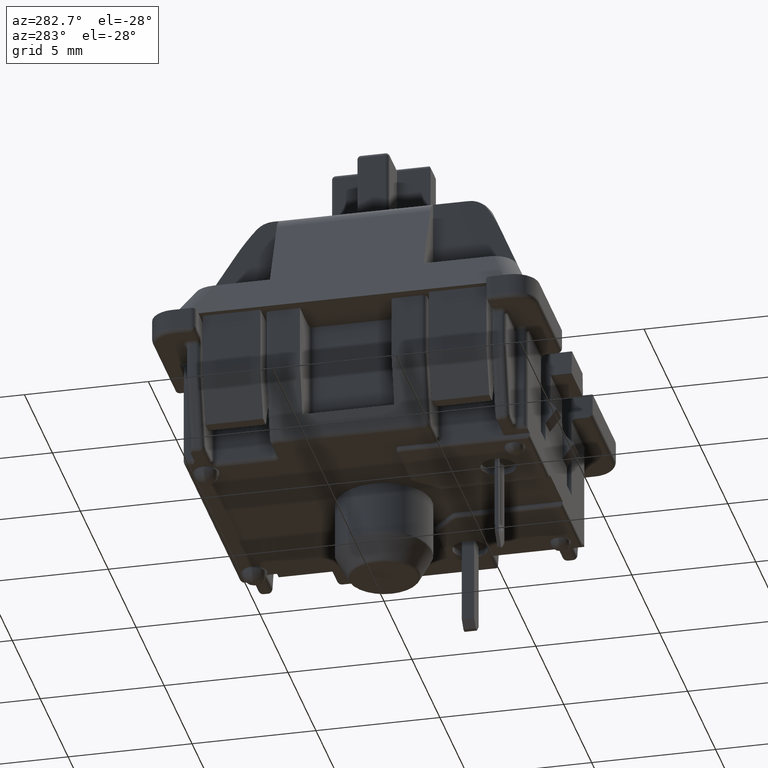
[diagram: clean part render]
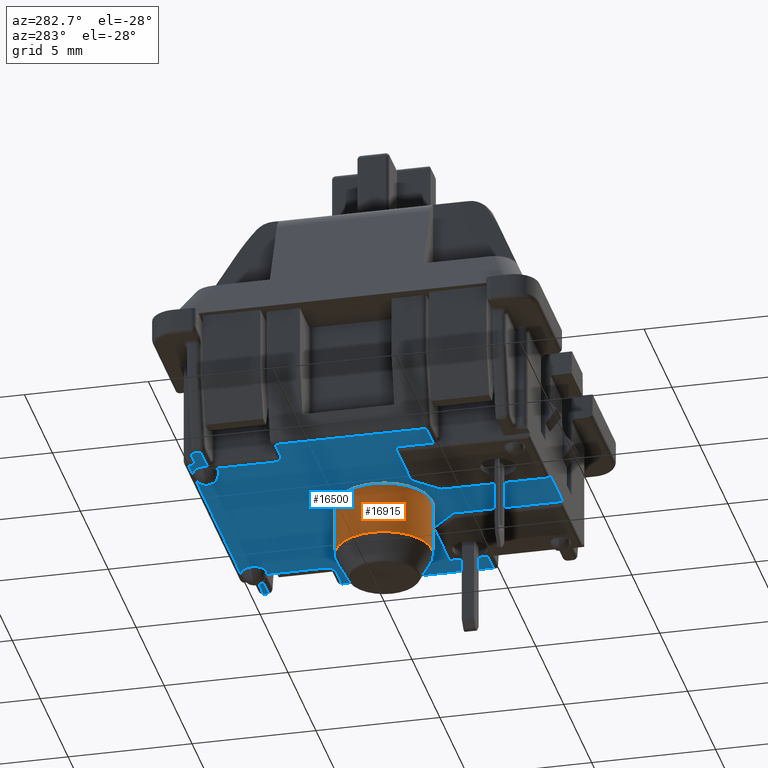
[diagram: same view with the hole feature highlighted: cylindrical wall and planar end face, labeled with their STEP entity ids]
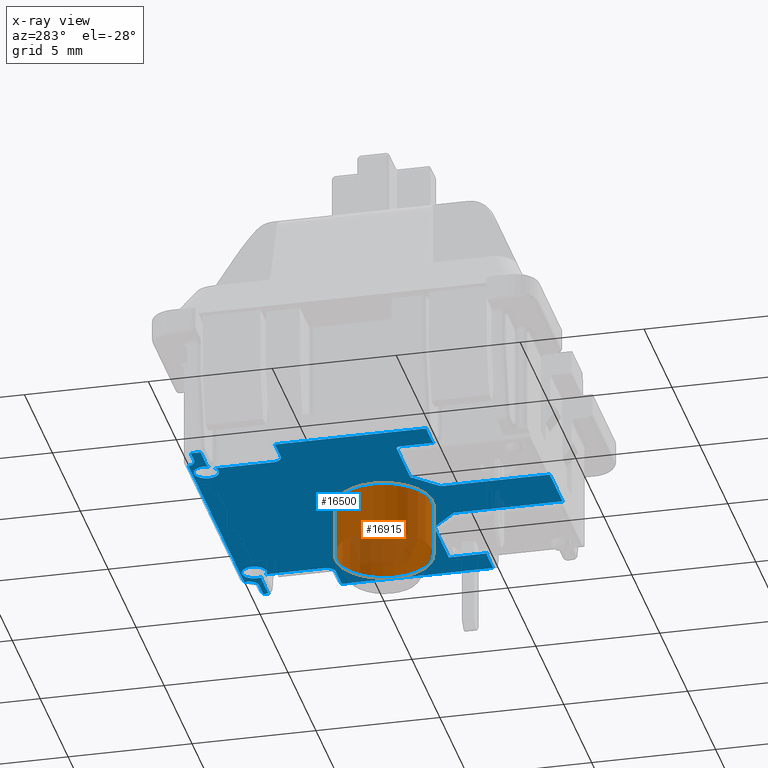
[diagram: x-ray of the same camera — body ghosted, the hole faces saturated]
A machine part, auxiliary view. The highlighted faces form one hole feature of diameter 3.9 mm: the cylindrical wall (entity #16915, orange) and its adjacent planar end face (entity #16500, blue) — they share a circular edge in the B-rep.
The next image is the same camera in x-ray (body ghosted, the hole faces saturated) — the bore reads through the body.
Wall:
#16489=CARTESIAN_POINT('',(0.076771653543307,-1.880363E-017,-0.216535433070866));
#16490=VERTEX_POINT('',#16489);
#16491=CARTESIAN_POINT('',(0.0,0.0,-0.216535433070866));
#16492=DIRECTION('',(0.0,0.0,1.0));
#16493=DIRECTION('',(1.0,0.0,0.0));
#16494=AXIS2_PLACEMENT_3D('',#16491,#16492,#16493);
#16495=CIRCLE('',#16494,0.076771653543307);
#16496=EDGE_CURVE('',#16490,#16490,#16495,.T.);
#16889=CARTESIAN_POINT('',(0.076771653543308,0.0,-0.301632735636528));
#16890=VERTEX_POINT('',#16889);
#16891=CARTESIAN_POINT('',(0.0,0.0,-0.301632735636528));
#16892=DIRECTION('',(0.0,0.0,-1.0));
#16893=DIRECTION('',(-1.0,0.0,0.0));
#16894=AXIS2_PLACEMENT_3D('',#16891,#16892,#16893);
#16895=CIRCLE('',#16894,0.076771653543307);
#16896=EDGE_CURVE('',#16890,#16890,#16895,.T.);
#16904=CARTESIAN_POINT('',(0.0,0.0,-0.305887600764811));
#16905=DIRECTION('',(0.0,0.0,1.0));
#16906=DIRECTION('',(1.0,0.0,0.0));
#16907=AXIS2_PLACEMENT_3D('',#16904,#16905,#16906);
#16908=CYLINDRICAL_SURFACE('',#16907,0.076771653543307);
#16909=ORIENTED_EDGE('',*,*,#16496,.F.);
#16910=EDGE_LOOP('',(#16909));
#16911=FACE_OUTER_BOUND('',#16910,.T.);
#16912=ORIENTED_EDGE('',*,*,#16896,.F.);
#16913=EDGE_LOOP('',(#16912));
#16914=FACE_BOUND('',#16913,.T.);
#16915=ADVANCED_FACE('',(#16911,#16914),#16908,.T.);
End face:
#9914=CARTESIAN_POINT('',(-0.196850393700787,0.265748031496063,-0.216535433070866));
#9915=VERTEX_POINT('',#9914);
#9939=CARTESIAN_POINT('',(-0.196850393700787,0.261811023622047,-0.216535433070866));
#9940=VERTEX_POINT('',#9939);
#9941=CARTESIAN_POINT('',(-0.196850393700787,0.265748031496063,-0.216535433070866));
#9942=DIRECTION('',(0.0,-1.0,0.0));
#9943=VECTOR('',#9942,0.003937007874016);
#9944=LINE('',#9941,#9943);
#9945=EDGE_CURVE('',#9915,#9940,#9944,.T.);
#9979=CARTESIAN_POINT('',(0.196850393700787,0.265748031496063,-0.216535433070866));
#9980=VERTEX_POINT('',#9979);
#9988=CARTESIAN_POINT('',(0.196850393700787,0.265748031496063,-0.216535433070866));
#9989=DIRECTION('',(-1.0,0.0,0.0));
#9990=VECTOR('',#9989,0.393700787401574);
#9991=LINE('',#9988,#9990);
#9992=EDGE_CURVE('',#9980,#9915,#9991,.T.);
#11454=CARTESIAN_POINT('',(-0.045275590551181,-0.273622047244095,-0.216535433070866));
#11455=VERTEX_POINT('',#11454);
#11462=CARTESIAN_POINT('',(0.045275590551181,-0.273622047244095,-0.216535433070866));
#11463=VERTEX_POINT('',#11462);
#11464=CARTESIAN_POINT('',(-0.045275590551181,-0.273622047244095,-0.216535433070866));
#11465=DIRECTION('',(1.0,0.0,0.0));
#11466=VECTOR('',#11465,0.090551181102362);
#11467=LINE('',#11464,#11466);
#11468=EDGE_CURVE('',#11455,#11463,#11467,.T.);
#11545=CARTESIAN_POINT('',(0.19488188976378,-0.12007874015748,-0.216535433070866));
#11546=VERTEX_POINT('',#11545);
#11554=CARTESIAN_POINT('',(0.235926454580409,-0.12007874015748,-0.216535433070866));
#11555=VERTEX_POINT('',#11554);
#11556=CARTESIAN_POINT('',(0.19488188976378,-0.12007874015748,-0.216535433070866));
#11557=DIRECTION('',(1.0,0.0,0.0));
#11558=VECTOR('',#11557,0.041044564816629);
#11559=LINE('',#11556,#11558);
#11560=EDGE_CURVE('',#11546,#11555,#11559,.T.);
#11579=CARTESIAN_POINT('',(0.187007874015748,-0.122188576318355,-0.216535433070866));
#11580=VERTEX_POINT('',#11579);
#11590=CARTESIAN_POINT('',(0.19488188976378,-0.135826771653543,-0.216535433070866));
#11591=DIRECTION('',(0.0,0.0,-1.0));
#11592=DIRECTION('',(-0.707106781186548,0.707106781186548,0.0));
#11593=AXIS2_PLACEMENT_3D('',#11590,#11591,#11592);
#11594=CIRCLE('',#11593,0.015748031496063);
#11595=EDGE_CURVE('',#11580,#11546,#11594,.T.);
#13964=CARTESIAN_POINT('',(-0.235926454580409,-0.12007874015748,-0.216535433070866));
#13965=VERTEX_POINT('',#13964);
#13997=CARTESIAN_POINT('',(-0.234025830089505,0.253937007874016,-0.216535433070866));
#13998=VERTEX_POINT('',#13997);
#14005=CARTESIAN_POINT('',(-0.235926454580407,0.253717182744672,-0.216535433070866));
#14006=VERTEX_POINT('',#14005);
#14007=CARTESIAN_POINT('',(-0.234025830089505,0.246062992125984,-0.216535433070866));
#14008=DIRECTION('',(0.0,0.0,1.0));
#14009=DIRECTION('',(-1.0,0.0,0.0));
#14010=AXIS2_PLACEMENT_3D('',#14007,#14008,#14009);
#14011=ELLIPSE('',#14010,0.008100154162463,0.007874015748031);
#14012=EDGE_CURVE('',#13998,#14006,#14011,.T.);
#14119=CARTESIAN_POINT('',(-0.235926454580409,0.12007874015748,-0.216535433070866));
#14120=VERTEX_POINT('',#14119);
#14253=CARTESIAN_POINT('',(-0.235926454580409,0.238188976377953,-0.216535433070866));
#14254=VERTEX_POINT('',#14253);
#14277=CARTESIAN_POINT('',(-0.235926454580409,0.253717182744672,-0.216535433070866));
#14278=DIRECTION('',(0.0,-1.0,0.0));
#14279=VECTOR('',#14278,0.015528206366719);
#14280=LINE('',#14277,#14279);
#14281=EDGE_CURVE('',#14006,#14254,#14280,.T.);
#14299=CARTESIAN_POINT('',(-0.179133858267717,0.135826771653543,-0.216535433070866));
#14300=VERTEX_POINT('',#14299);
#14301=CARTESIAN_POINT('',(-0.19488188976378,0.12007874015748,-0.216535433070866));
#14302=VERTEX_POINT('',#14301);
#14303=CARTESIAN_POINT('',(-0.19488188976378,0.135826771653543,-0.216535433070866));
#14304=DIRECTION('',(0.0,0.0,-1.0));
#14305=DIRECTION('',(0.707106781186548,-0.707106781186548,0.0));
#14306=AXIS2_PLACEMENT_3D('',#14303,#14304,#14305);
#14307=CIRCLE('',#14306,0.015748031496063);
#14308=EDGE_CURVE('',#14300,#14302,#14307,.T.);
#14344=CARTESIAN_POINT('',(-0.19488188976378,0.12007874015748,-0.216535433070866));
#14345=DIRECTION('',(-1.0,0.0,0.0));
#14346=VECTOR('',#14345,0.041044564816629);
#14347=LINE('',#14344,#14346);
#14348=EDGE_CURVE('',#14302,#14120,#14347,.T.);
#14444=CARTESIAN_POINT('',(-0.179993504659467,0.227572853394975,-0.216535433070866));
#14445=VERTEX_POINT('',#14444);
#14446=CARTESIAN_POINT('',(-0.187356481764644,0.236274553610184,-0.216535433070866));
#14447=VERTEX_POINT('',#14446);
#14467=CARTESIAN_POINT('',(-0.179133858267717,0.22244094488189,-0.216535433070866));
#14468=VERTEX_POINT('',#14467);
#14469=CARTESIAN_POINT('',(-0.19488188976378,0.22244094488189,-0.216535433070866));
#14470=DIRECTION('',(0.0,0.0,-1.0));
#14471=DIRECTION('',(0.707106781186548,0.707106781186548,0.0));
#14472=AXIS2_PLACEMENT_3D('',#14469,#14470,#14471);
#14473=CIRCLE('',#14472,0.015748031496063);
#14474=EDGE_CURVE('',#14445,#14468,#14473,.T.);
#14494=CARTESIAN_POINT('',(-0.19488188976378,0.238188976377953,-0.216535433070866));
#14495=VERTEX_POINT('',#14494);
#14503=CARTESIAN_POINT('',(-0.19488188976378,0.22244094488189,-0.216535433070866));
#14504=DIRECTION('',(0.0,0.0,-1.0));
#14505=DIRECTION('',(0.707106781186548,0.707106781186548,0.0));
#14506=AXIS2_PLACEMENT_3D('',#14503,#14504,#14505);
#14507=CIRCLE('',#14506,0.015748031496063);
#14508=EDGE_CURVE('',#14495,#14447,#14507,.T.);
#14519=CARTESIAN_POINT('',(-0.235926454580409,0.238188976377953,-0.216535433070866));
#14520=DIRECTION('',(1.0,0.0,0.0));
#14521=VECTOR('',#14520,0.041044564816629);
#14522=LINE('',#14519,#14521);
#14523=EDGE_CURVE('',#14254,#14495,#14522,.T.);
#14541=CARTESIAN_POINT('',(-0.179133858267717,0.22244094488189,-0.216535433070866));
#14542=DIRECTION('',(0.0,-1.0,0.0));
#14543=VECTOR('',#14542,0.086614173228347);
#14544=LINE('',#14541,#14543);
#14545=EDGE_CURVE('',#14468,#14300,#14544,.T.);
#14629=CARTESIAN_POINT('',(-0.235926454580409,0.12007874015748,-0.216535433070866));
#14630=DIRECTION('',(0.0,-1.0,0.0));
#14631=VECTOR('',#14630,0.24015748031496);
#14632=LINE('',#14629,#14631);
#14633=EDGE_CURVE('',#14120,#13965,#14632,.T.);
#14694=CARTESIAN_POINT('',(-0.19488188976378,-0.12007874015748,-0.216535433070866));
#14695=VERTEX_POINT('',#14694);
#14712=CARTESIAN_POINT('',(-0.235926454580409,-0.12007874015748,-0.216535433070866));
#14713=DIRECTION('',(1.0,0.0,0.0));
#14714=VECTOR('',#14713,0.041044564816629);
#14715=LINE('',#14712,#14714);
#14716=EDGE_CURVE('',#13965,#14695,#14715,.T.);
#14726=CARTESIAN_POINT('',(-0.187007874015748,-0.122188576318355,-0.216535433070866));
#14727=VERTEX_POINT('',#14726);
#14747=CARTESIAN_POINT('',(-0.19488188976378,-0.135826771653543,-0.216535433070866));
#14748=DIRECTION('',(0.0,0.0,-1.0));
#14749=DIRECTION('',(0.707106781186548,0.707106781186548,0.0));
#14750=AXIS2_PLACEMENT_3D('',#14747,#14748,#14749);
#14751=CIRCLE('',#14750,0.015748031496063);
#14752=EDGE_CURVE('',#14695,#14727,#14751,.T.);
#14872=CARTESIAN_POINT('',(-0.210488589035975,0.253937007874016,-0.216535433070866));
#14873=VERTEX_POINT('',#14872);
#14874=CARTESIAN_POINT('',(-0.196850393700787,0.261811023622047,-0.216535433070866));
#14875=CARTESIAN_POINT('',(-0.199032269465204,0.25962914785763,-0.216535433070866));
#14876=CARTESIAN_POINT('',(-0.201694671434678,0.257055805384341,-0.216535433070866));
#14877=CARTESIAN_POINT('',(-0.20617898010355,0.254642299211794,-0.216535433070866));
#14878=CARTESIAN_POINT('',(-0.20848168020231,0.253937007874016,-0.216535433070866));
#14879=CARTESIAN_POINT('',(-0.210488589035975,0.253937007874016,-0.216535433070866));
#14880=B_SPLINE_CURVE_WITH_KNOTS('',3,(#14874,#14875,#14876,#14877,#14878,#14879),.UNSPECIFIED.,.F.,.U.,(4,2,4),(0.0,0.009256914892355,0.015277641393352),.UNSPECIFIED.);
#14881=EDGE_CURVE('',#9940,#14873,#14880,.T.);
#15117=CARTESIAN_POINT('',(0.235926454580409,0.12007874015748,-0.216535433070866));
#15118=VERTEX_POINT('',#15117);
#15142=CARTESIAN_POINT('',(0.235926454580409,-0.12007874015748,-0.216535433070866));
#15143=DIRECTION('',(0.0,1.0,0.0));
#15144=VECTOR('',#15143,0.24015748031496);
#15145=LINE('',#15142,#15144);
#15146=EDGE_CURVE('',#11555,#15118,#15145,.T.);
#15237=CARTESIAN_POINT('',(0.19488188976378,0.12007874015748,-0.216535433070866));
#15238=VERTEX_POINT('',#15237);
#15246=CARTESIAN_POINT('',(0.179133858267717,0.135826771653543,-0.216535433070866));
#15247=VERTEX_POINT('',#15246);
#15248=CARTESIAN_POINT('',(0.19488188976378,0.135826771653543,-0.216535433070866));
#15249=DIRECTION('',(0.0,0.0,-1.0));
#15250=DIRECTION('',(-0.707106781186549,-0.707106781186546,0.0));
#15251=AXIS2_PLACEMENT_3D('',#15248,#15249,#15250);
#15252=CIRCLE('',#15251,0.015748031496063);
#15253=EDGE_CURVE('',#15238,#15247,#15252,.T.);
#15271=CARTESIAN_POINT('',(0.235926454580409,0.12007874015748,-0.216535433070866));
#15272=DIRECTION('',(-1.0,0.0,0.0));
#15273=VECTOR('',#15272,0.041044564816629);
#15274=LINE('',#15271,#15273);
#15275=EDGE_CURVE('',#15118,#15238,#15274,.T.);
#15381=CARTESIAN_POINT('',(0.187356481764644,0.236274553610184,-0.216535433070866));
#15382=VERTEX_POINT('',#15381);
#15383=CARTESIAN_POINT('',(0.179993504659467,0.227572853394975,-0.216535433070866));
#15384=VERTEX_POINT('',#15383);
#15402=CARTESIAN_POINT('',(0.19488188976378,0.238188976377953,-0.216535433070866));
#15403=VERTEX_POINT('',#15402);
#15404=CARTESIAN_POINT('',(0.194881889763779,0.22244094488189,-0.216535433070866));
#15405=DIRECTION('',(0.0,0.0,-1.0));
#15406=DIRECTION('',(-0.707106781186547,0.707106781186548,0.0));
#15407=AXIS2_PLACEMENT_3D('',#15404,#15405,#15406);
#15408=CIRCLE('',#15407,0.015748031496063);
#15409=EDGE_CURVE('',#15382,#15403,#15408,.T.);
#15429=CARTESIAN_POINT('',(0.179133858267717,0.22244094488189,-0.216535433070866));
#15430=VERTEX_POINT('',#15429);
#15438=CARTESIAN_POINT('',(0.194881889763779,0.22244094488189,-0.216535433070866));
#15439=DIRECTION('',(0.0,0.0,-1.0));
#15440=DIRECTION('',(-0.707106781186547,0.707106781186548,0.0));
#15441=AXIS2_PLACEMENT_3D('',#15438,#15439,#15440);
#15442=CIRCLE('',#15441,0.015748031496063);
#15443=EDGE_CURVE('',#15430,#15384,#15442,.T.);
#15852=CARTESIAN_POINT('',(0.21259842519685,0.246062992125984,-0.216535433070866));
#15853=VERTEX_POINT('',#15852);
#15854=CARTESIAN_POINT('',(0.196850393700787,0.261811023622047,-0.216535433070866));
#15855=VERTEX_POINT('',#15854);
#15856=CARTESIAN_POINT('',(0.21259842519685,0.261811023622047,-0.216535433070866));
#15857=DIRECTION('',(0.0,0.0,-1.0));
#15858=DIRECTION('',(-0.707106781186548,-0.707106781186548,0.0));
#15859=AXIS2_PLACEMENT_3D('',#15856,#15857,#15858);
#15860=CIRCLE('',#15859,0.015748031496063);
#15861=EDGE_CURVE('',#15853,#15855,#15860,.T.);
#15939=CARTESIAN_POINT('',(0.196850393700787,0.261811023622047,-0.216535433070866));
#15940=DIRECTION('',(0.0,1.0,0.0));
#15941=VECTOR('',#15940,0.003937007874016);
#15942=LINE('',#15939,#15941);
#15943=EDGE_CURVE('',#15855,#9980,#15942,.T.);
#15982=CARTESIAN_POINT('',(0.242125984251969,0.246062992125984,-0.216535433070866));
#15983=VERTEX_POINT('',#15982);
#15984=CARTESIAN_POINT('',(0.242125984251969,0.246062992125984,-0.216535433070866));
#15985=DIRECTION('',(-1.0,0.0,0.0));
#15986=VECTOR('',#15985,0.029527559055119);
#15987=LINE('',#15984,#15986);
#15988=EDGE_CURVE('',#15983,#15853,#15987,.T.);
#16142=CARTESIAN_POINT('',(0.242125984251969,0.238188976377953,-0.216535433070866));
#16143=VERTEX_POINT('',#16142);
#16173=CARTESIAN_POINT('',(0.19488188976378,0.238188976377953,-0.216535433070866));
#16174=DIRECTION('',(1.0,0.0,0.0));
#16175=VECTOR('',#16174,0.047244094488189);
#16176=LINE('',#16173,#16175);
#16177=EDGE_CURVE('',#15403,#16143,#16176,.T.);
#16211=CARTESIAN_POINT('',(0.179133858267717,0.135826771653543,-0.216535433070866));
#16212=DIRECTION('',(0.0,1.0,0.0));
#16213=VECTOR('',#16212,0.086614173228347);
#16214=LINE('',#16211,#16213);
#16215=EDGE_CURVE('',#15247,#15430,#16214,.T.);
#16356=CARTESIAN_POINT('',(0.242125984251969,0.246062992125984,-0.216535433070866));
#16357=DIRECTION('',(0.0,-1.0,0.0));
#16358=VECTOR('',#16357,0.007874015748031);
#16359=LINE('',#16356,#16358);
#16360=EDGE_CURVE('',#15983,#16143,#16359,.T.);
#16365=CARTESIAN_POINT('',(-0.259829076522028,-0.300590551181103,-0.216535433070866));
#16366=DIRECTION('',(0.0,0.0,1.0));
#16367=DIRECTION('',(1.0,0.0,0.0));
#16368=AXIS2_PLACEMENT_3D('',#16365,#16366,#16367);
#16369=PLANE('',#16368);
#16370=ORIENTED_EDGE('',*,*,#11595,.F.);
#16371=CARTESIAN_POINT('',(0.187007874015748,-0.061023622047244,-0.216535433070866));
#16372=VERTEX_POINT('',#16371);
#16373=CARTESIAN_POINT('',(0.187007874015748,-0.122188576318355,-0.216535433070866));
#16374=DIRECTION('',(0.0,1.0,0.0));
#16375=VECTOR('',#16374,0.061164954271111);
#16376=LINE('',#16373,#16375);
#16377=EDGE_CURVE('',#11580,#16372,#16376,.T.);
#16378=ORIENTED_EDGE('',*,*,#16377,.T.);
#16379=CARTESIAN_POINT('',(0.084645669291339,-0.061023622047244,-0.216535433070866));
#16380=VERTEX_POINT('',#16379);
#16381=CARTESIAN_POINT('',(0.187007874015748,-0.061023622047244,-0.216535433070866));
#16382=DIRECTION('',(-1.0,0.0,0.0));
#16383=VECTOR('',#16382,0.102362204724409);
#16384=LINE('',#16381,#16383);
#16385=EDGE_CURVE('',#16372,#16380,#16384,.T.);
#16386=ORIENTED_EDGE('',*,*,#16385,.T.);
#16387=CARTESIAN_POINT('',(0.045275590551181,-0.100393700787402,-0.216535433070866));
#16388=VERTEX_POINT('',#16387);
#16389=CARTESIAN_POINT('',(0.084645669291339,-0.061023622047244,-0.216535433070866));
#16390=DIRECTION('',(-0.707106781186547,-0.707106781186548,0.0));
#16391=VECTOR('',#16390,0.055677699306028);
#16392=LINE('',#16389,#16391);
#16393=EDGE_CURVE('',#16380,#16388,#16392,.T.);
#16394=ORIENTED_EDGE('',*,*,#16393,.T.);
#16395=CARTESIAN_POINT('',(0.045275590551181,-0.100393700787402,-0.216535433070866));
#16396=DIRECTION('',(0.0,-1.0,0.0));
#16397=VECTOR('',#16396,0.173228346456693);
#16398=LINE('',#16395,#16397);
#16399=EDGE_CURVE('',#16388,#11463,#16398,.T.);
#16400=ORIENTED_EDGE('',*,*,#16399,.T.);
#16401=ORIENTED_EDGE('',*,*,#11468,.F.);
#16402=CARTESIAN_POINT('',(-0.045275590551181,-0.100393700787402,-0.216535433070866));
#16403=VERTEX_POINT('',#16402);
#16404=CARTESIAN_POINT('',(-0.045275590551181,-0.273622047244095,-0.216535433070866));
#16405=DIRECTION('',(0.0,1.0,0.0));
#16406=VECTOR('',#16405,0.173228346456693);
#16407=LINE('',#16404,#16406);
#16408=EDGE_CURVE('',#11455,#16403,#16407,.T.);
#16409=ORIENTED_EDGE('',*,*,#16408,.T.);
#16410=CARTESIAN_POINT('',(-0.084645669291339,-0.061023622047244,-0.216535433070866));
#16411=VERTEX_POINT('',#16410);
#16412=CARTESIAN_POINT('',(-0.045275590551181,-0.100393700787402,-0.216535433070866));
#16413=DIRECTION('',(-0.707106781186547,0.707106781186548,0.0));
#16414=VECTOR('',#16413,0.055677699306028);
#16415=LINE('',#16412,#16414);
#16416=EDGE_CURVE('',#16403,#16411,#16415,.T.);
#16417=ORIENTED_EDGE('',*,*,#16416,.T.);
#16418=CARTESIAN_POINT('',(-0.181102362204725,-0.061023622047244,-0.216535433070866));
#16419=VERTEX_POINT('',#16418);
#16420=CARTESIAN_POINT('',(-0.084645669291339,-0.061023622047244,-0.216535433070866));
#16421=DIRECTION('',(-1.0,0.0,0.0));
#16422=VECTOR('',#16421,0.096456692913386);
#16423=LINE('',#16420,#16422);
#16424=EDGE_CURVE('',#16411,#16419,#16423,.T.);
#16425=ORIENTED_EDGE('',*,*,#16424,.T.);
#16426=CARTESIAN_POINT('',(-0.187007874015748,-0.066929133858268,-0.216535433070866));
#16427=VERTEX_POINT('',#16426);
#16428=CARTESIAN_POINT('',(-0.181102362204725,-0.066929133858268,-0.216535433070866));
#16429=DIRECTION('',(0.0,0.0,-1.0));
#16430=DIRECTION('',(-0.707106781186547,0.707106781186547,0.0));
#16431=AXIS2_PLACEMENT_3D('',#16428,#16429,#16430);
#16432=CIRCLE('',#16431,0.005905511811024);
#16433=EDGE_CURVE('',#16427,#16419,#16432,.T.);
#16434=ORIENTED_EDGE('',*,*,#16433,.F.);
#16435=CARTESIAN_POINT('',(-0.187007874015748,-0.122188576318355,-0.216535433070866));
#16436=DIRECTION('',(0.0,1.0,0.0));
#16437=VECTOR('',#16436,0.055259442460087);
#16438=LINE('',#16435,#16437);
#16439=EDGE_CURVE('',#14727,#16427,#16438,.T.);
#16440=ORIENTED_EDGE('',*,*,#16439,.F.);
#16441=ORIENTED_EDGE('',*,*,#14752,.F.);
#16442=ORIENTED_EDGE('',*,*,#14716,.F.);
#16443=ORIENTED_EDGE('',*,*,#14633,.F.);
#16444=ORIENTED_EDGE('',*,*,#14348,.F.);
#16445=ORIENTED_EDGE('',*,*,#14308,.F.);
#16446=ORIENTED_EDGE('',*,*,#14545,.F.);
#16447=ORIENTED_EDGE('',*,*,#14474,.F.);
#16448=CARTESIAN_POINT('',(-0.169291338582677,0.244094488188976,-0.216535433070866));
#16449=DIRECTION('',(0.0,0.0,1.0));
#16450=DIRECTION('',(1.0,0.0,0.0));
#16451=AXIS2_PLACEMENT_3D('',#16448,#16449,#16450);
#16452=CIRCLE('',#16451,0.019685039370079);
#16453=EDGE_CURVE('',#14445,#14447,#16452,.T.);
#16454=ORIENTED_EDGE('',*,*,#16453,.T.);
#16455=ORIENTED_EDGE('',*,*,#14508,.F.);
#16456=ORIENTED_EDGE('',*,*,#14523,.F.);
#16457=ORIENTED_EDGE('',*,*,#14281,.F.);
#16458=ORIENTED_EDGE('',*,*,#14012,.F.);
#16459=CARTESIAN_POINT('',(-0.210488589035975,0.253937007874016,-0.216535433070866));
#16460=DIRECTION('',(-1.0,0.0,0.0));
#16461=VECTOR('',#16460,0.02353724105353);
#16462=LINE('',#16459,#16461);
#16463=EDGE_CURVE('',#14873,#13998,#16462,.T.);
#16464=ORIENTED_EDGE('',*,*,#16463,.F.);
#16465=ORIENTED_EDGE('',*,*,#14881,.F.);
#16466=ORIENTED_EDGE('',*,*,#9945,.F.);
#16467=ORIENTED_EDGE('',*,*,#9992,.F.);
#16468=ORIENTED_EDGE('',*,*,#15943,.F.);
#16469=ORIENTED_EDGE('',*,*,#15861,.F.);
#16470=ORIENTED_EDGE('',*,*,#15988,.F.);
#16471=ORIENTED_EDGE('',*,*,#16360,.T.);
#16472=ORIENTED_EDGE('',*,*,#16177,.F.);
#16473=ORIENTED_EDGE('',*,*,#15409,.F.);
#16474=CARTESIAN_POINT('',(0.169291338582677,0.244094488188976,-0.216535433070866));
#16475=DIRECTION('',(0.0,0.0,1.0));
#16476=DIRECTION('',(1.0,0.0,0.0));
#16477=AXIS2_PLACEMENT_3D('',#16474,#16475,#16476);
#16478=CIRCLE('',#16477,0.019685039370079);
#16479=EDGE_CURVE('',#15382,#15384,#16478,.T.);
#16480=ORIENTED_EDGE('',*,*,#16479,.T.);
#16481=ORIENTED_EDGE('',*,*,#15443,.F.);
#16482=ORIENTED_EDGE('',*,*,#16215,.F.);
#16483=ORIENTED_EDGE('',*,*,#15253,.F.);
#16484=ORIENTED_EDGE('',*,*,#15275,.F.);
#16485=ORIENTED_EDGE('',*,*,#15146,.F.);
#16486=ORIENTED_EDGE('',*,*,#11560,.F.);
#16487=EDGE_LOOP('',(#16370,#16378,#16386,#16394,#16400,#16401,#16409,#16417,#16425,#16434,#16440,#16441,#16442,#16443,#16444,#16445,#16446,#16447,#16454,#16455,#16456,#16457,#16458,#16464,#16465,#16466,#16467,#16468,#16469,#16470,#16471,#16472,#16473,#16480,#16481,#16482,#16483,#16484,#16485,#16486));
#16488=FACE_OUTER_BOUND('',#16487,.T.);
#16489=CARTESIAN_POINT('',(0.076771653543307,-1.880363E-017,-0.216535433070866));
#16490=VERTEX_POINT('',#16489);
#16491=CARTESIAN_POINT('',(0.0,0.0,-0.216535433070866));
#16492=DIRECTION('',(0.0,0.0,1.0));
#16493=DIRECTION('',(1.0,0.0,0.0));
#16494=AXIS2_PLACEMENT_3D('',#16491,#16492,#16493);
#16495=CIRCLE('',#16494,0.076771653543307);
#16496=EDGE_CURVE('',#16490,#16490,#16495,.T.);
#16497=ORIENTED_EDGE('',*,*,#16496,.T.);
#16498=EDGE_LOOP('',(#16497));
#16499=FACE_BOUND('',#16498,.T.);
#16500=ADVANCED_FACE('',(#16488,#16499),#16369,.F.);